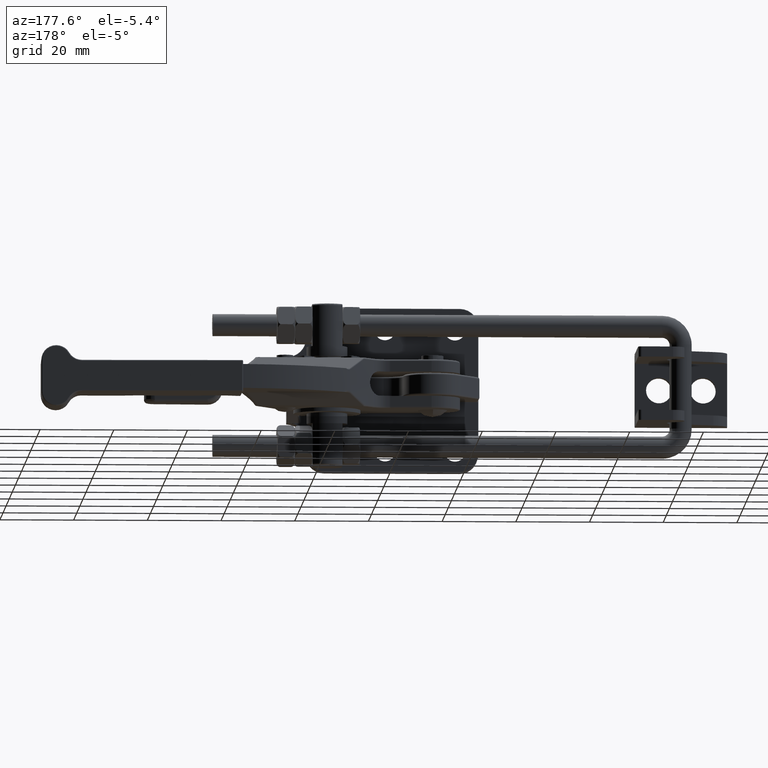
[diagram: clean part render]
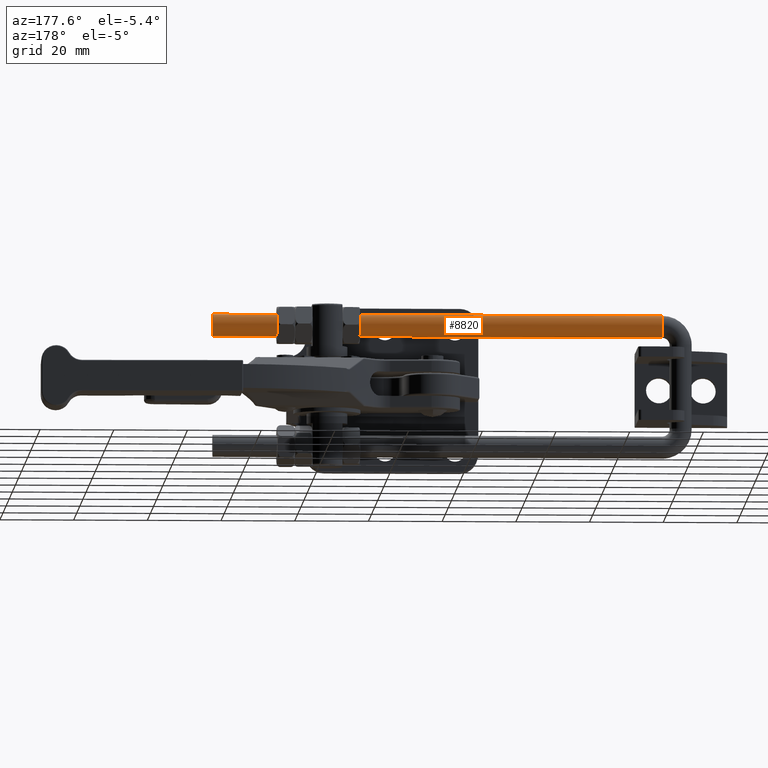
[diagram: same view with one face highlighted and labeled with its STEP entity id]
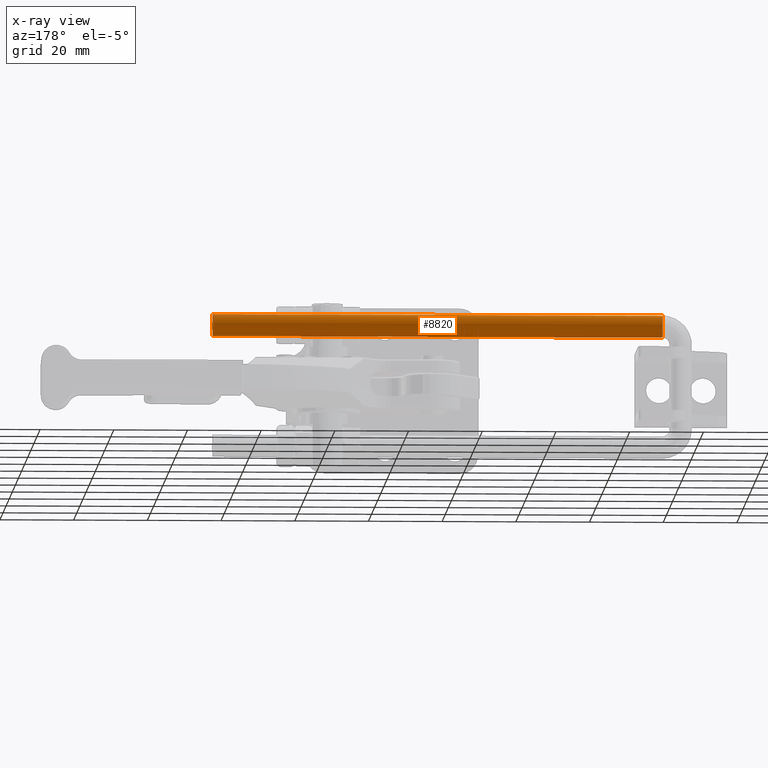
[diagram: x-ray of the same camera — body ghosted, the highlighted face saturated]
A machine part, auxiliary view. The second image highlights one B-rep face of the part: STEP entity #8820.
The next image is the same camera in x-ray: the body ghosted, the highlighted face saturated — about 0% of this face is hidden behind the body in this view.
In plain terms, the highlighted cylindrical surface (bore or boss wall) has radius 3 mm, axis along (-1, -0, 0).
Its self-contained STEP definition (entity closure, byte-faithful):
#470=FACE_BOUND('',#3080,.T.);
#1975=CYLINDRICAL_SURFACE('',#9775,3.);
#2490=FACE_OUTER_BOUND('',#3079,.T.);
#3079=EDGE_LOOP('',(#8218));
#3080=EDGE_LOOP('',(#8219));
#3583=CIRCLE('',#9771,3.);
#3585=CIRCLE('',#9776,3.);
#4282=VERTEX_POINT('',#29370);
#4406=VERTEX_POINT('',#48055);
#5517=EDGE_CURVE('',#4282,#4282,#3583,.T.);
#5680=EDGE_CURVE('',#4406,#4406,#3585,.T.);
#8218=ORIENTED_EDGE('',*,*,#5517,.F.);
#8219=ORIENTED_EDGE('',*,*,#5680,.F.);
#8820=ADVANCED_FACE('',(#2490,#470),#1975,.T.);
#9771=AXIS2_PLACEMENT_3D('',#29371,#12091,#12092);
#9775=AXIS2_PLACEMENT_3D('',#48054,#12125,#12126);
#9776=AXIS2_PLACEMENT_3D('',#48056,#12127,#12128);
#12091=DIRECTION('center_axis',(0.,-1.,0.));
#12092=DIRECTION('ref_axis',(-1.,0.,0.));
#12125=DIRECTION('center_axis',(0.,1.,0.));
#12126=DIRECTION('ref_axis',(-1.,0.,0.));
#12127=DIRECTION('center_axis',(0.,1.,0.));
#12128=DIRECTION('ref_axis',(-1.,0.,0.));
#29370=CARTESIAN_POINT('',(19.45,0.,3.67394039744206E-16));
#29371=CARTESIAN_POINT('Origin',(16.45,0.,0.));
#48054=CARTESIAN_POINT('Origin',(16.45,0.,0.));
#48055=CARTESIAN_POINT('',(13.45,122.,0.));
#48056=CARTESIAN_POINT('Origin',(16.45,122.,0.));